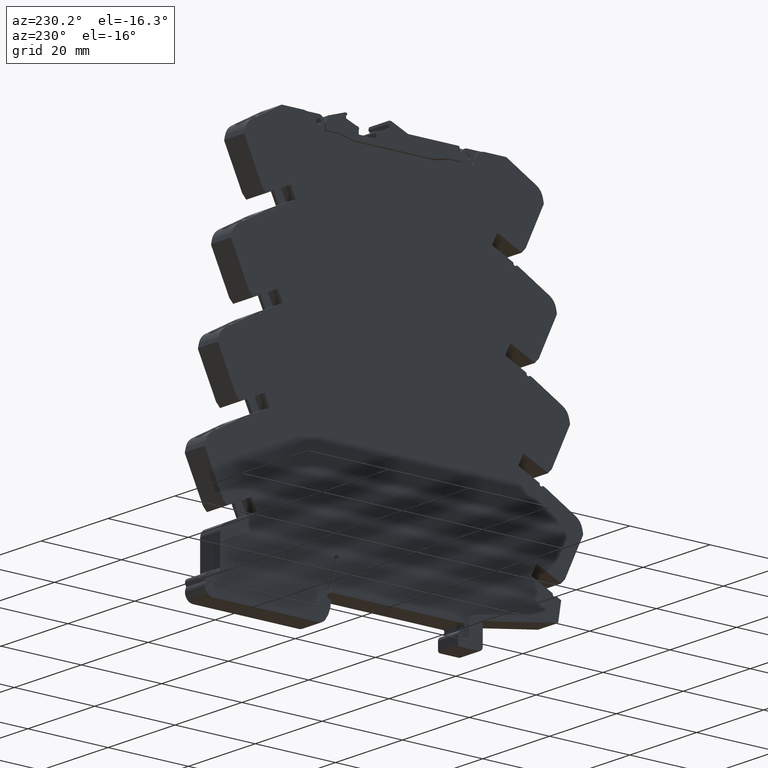
[diagram: clean part render]
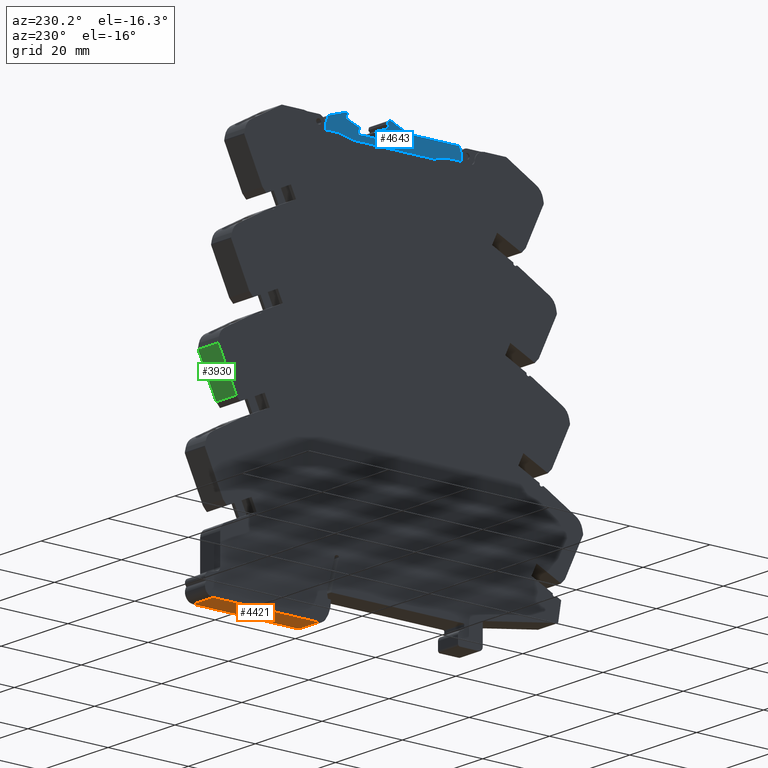
[diagram: same view with three faces highlighted in distinct colors, each labeled with its STEP entity id]
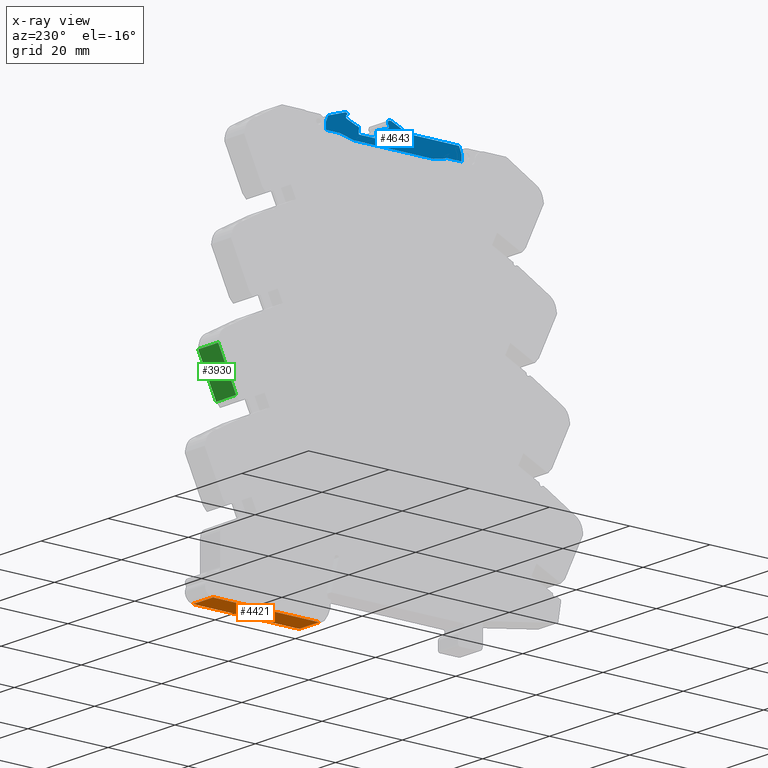
[diagram: x-ray of the same camera — body ghosted, the three highlighted faces saturated]
A machine part, auxiliary view with three faces highlighted in distinct colors.
The next image is the same camera in x-ray (body ghosted, the three faces saturated) — at least one of them is partly hidden behind the body in this view.
Their STEP definitions:

[orange] entity #4421 — the highlighted planar face has unit normal (0, 0, 1).
#105 = VERTEX_POINT ( 'NONE', #5752 ) ;
#154 = CARTESIAN_POINT ( 'NONE',  ( 0.000000000000000000, 0.7522805630401850907, -0.2558858267716535573 ) ) ;
#468 = EDGE_CURVE ( 'NONE', #105, #9638, #5641, .T. ) ;
#706 = EDGE_CURVE ( 'NONE', #10102, #2405, #8114, .T. ) ;
#1465 = CARTESIAN_POINT ( 'NONE',  ( -0.2362204724409449064, 0.7522805630611417715, -0.2558858267716535573 ) ) ;
#1492 = CARTESIAN_POINT ( 'NONE',  ( -0.2362204724409449064, 0.7522805630401850907, -0.2558858267716535573 ) ) ;
#1563 = CARTESIAN_POINT ( 'NONE',  ( -0.2362204724409449064, 1.791614549159480374, -0.2558858267716535573 ) ) ;
#1677 = VECTOR ( 'NONE', #4746, 39.37007874015748143 ) ;
#1956 = PLANE ( 'NONE',  #9848 ) ;
#2154 = LINE ( 'NONE', #9304, #6372 ) ;
#2228 = ORIENTED_EDGE ( 'NONE', *, *, #4947, .F. ) ;
#2405 = VERTEX_POINT ( 'NONE', #154 ) ;
#3201 = EDGE_LOOP ( 'NONE', ( #9626, #2228, #9007, #6309 ) ) ;
#3909 = DIRECTION ( 'NONE',  ( 1.000000000000000000, 0.000000000000000000, 0.000000000000000000 ) ) ;
#4421 = ADVANCED_FACE ( 'NONE', ( #8858 ), #1956, .F. ) ;
#4746 = DIRECTION ( 'NONE',  ( -1.000000000000000000, 0.000000000000000000, 0.000000000000000000 ) ) ;
#4947 = EDGE_CURVE ( 'NONE', #9638, #10102, #5327, .T. ) ;
#5133 = VECTOR ( 'NONE', #6605, 39.37007874015748143 ) ;
#5141 = CARTESIAN_POINT ( 'NONE',  ( -0.2362204724409449064, 1.791614549159480374, -0.2558858267716535573 ) ) ;
#5327 = LINE ( 'NONE', #9335, #5133 ) ;
#5435 = CARTESIAN_POINT ( 'NONE',  ( -0.2362204724409449064, 1.791614549159220582, -0.2558858267716535573 ) ) ;
#5636 = DIRECTION ( 'NONE',  ( 0.000000000000000000, 0.000000000000000000, 1.000000000000000000 ) ) ;
#5641 = LINE ( 'NONE', #1563, #1677 ) ;
#5752 = CARTESIAN_POINT ( 'NONE',  ( 0.000000000000000000, 1.791614549159220582, -0.2558858267716535573 ) ) ;
#5754 = VECTOR ( 'NONE', #3909, 39.37007874015748143 ) ;
#6220 = EDGE_CURVE ( 'NONE', #105, #2405, #2154, .T. ) ;
#6309 = ORIENTED_EDGE ( 'NONE', *, *, #6220, .T. ) ;
#6372 = VECTOR ( 'NONE', #8565, 39.37007874015748143 ) ;
#6605 = DIRECTION ( 'NONE',  ( 0.000000000000000000, -1.000000000000000000, 0.000000000000000000 ) ) ;
#8114 = LINE ( 'NONE', #1465, #5754 ) ;
#8565 = DIRECTION ( 'NONE',  ( 0.000000000000000000, -1.000000000000000000, 0.000000000000000000 ) ) ;
#8858 = FACE_OUTER_BOUND ( 'NONE', #3201, .T. ) ;
#9007 = ORIENTED_EDGE ( 'NONE', *, *, #468, .F. ) ;
#9304 = CARTESIAN_POINT ( 'NONE',  ( 0.000000000000000000, 1.791614549159480374, -0.2558858267716535573 ) ) ;
#9335 = CARTESIAN_POINT ( 'NONE',  ( -0.2362204724409449064, 1.855790060789259899, -0.2558858267716535573 ) ) ;
#9626 = ORIENTED_EDGE ( 'NONE', *, *, #706, .F. ) ;
#9638 = VERTEX_POINT ( 'NONE', #5435 ) ;
#9848 = AXIS2_PLACEMENT_3D ( 'NONE', #5141, #5636, #9953 ) ;
#9953 = DIRECTION ( 'NONE',  ( -1.000000000000000000, 0.000000000000000000, 0.000000000000000000 ) ) ;
#10102 = VERTEX_POINT ( 'NONE', #1492 ) ;

[blue] entity #4643 — the highlighted planar face has unit normal (-1, 0, 0).
#2 = VECTOR ( 'NONE', #3940, 39.37007874015748854 ) ;
#22 = DIRECTION ( 'NONE',  ( -0.000000000000000000, 1.000000000000000000, 2.694891775568940071E-13 ) ) ;
#35 = DIRECTION ( 'NONE',  ( 0.000000000000000000, 0.3713906763541032774, 0.9284766908852594147 ) ) ;
#72 = CARTESIAN_POINT ( 'NONE',  ( -0.2322834645669291376, 0.4057086614173228689, 3.592933070866141776 ) ) ;
#148 = DIRECTION ( 'NONE',  ( 0.000000000000000000, 1.000000000000000000, 0.000000000000000000 ) ) ;
#192 = VECTOR ( 'NONE', #4260, 39.37007874015748854 ) ;
#250 = CARTESIAN_POINT ( 'NONE',  ( -0.2322834645669291376, 0.5477952755905511895, 3.624429133858268148 ) ) ;
#281 = CIRCLE ( 'NONE', #6636, 0.007874015748031142070 ) ;
#292 = LINE ( 'NONE', #5947, #192 ) ;
#365 = DIRECTION ( 'NONE',  ( 0.000000000000000000, 0.000000000000000000, 1.000000000000000000 ) ) ;
#387 = DIRECTION ( 'NONE',  ( 0.000000000000000000, -1.000000000000000000, 0.000000000000000000 ) ) ;
#410 = EDGE_CURVE ( 'NONE', #2985, #9839, #8653, .T. ) ;
#469 = CARTESIAN_POINT ( 'NONE',  ( -0.2322834645669291376, 0.06748031494124212548, 3.777736220467449169 ) ) ;
#471 = EDGE_CURVE ( 'NONE', #6669, #2985, #772, .T. ) ;
#489 = EDGE_CURVE ( 'NONE', #5129, #4576, #1034, .T. ) ;
#507 = VECTOR ( 'NONE', #35, 39.37007874015748854 ) ;
#668 = AXIS2_PLACEMENT_3D ( 'NONE', #5158, #9966, #2748 ) ;
#717 = DIRECTION ( 'NONE',  ( 0.000000000000000000, 1.000000000000000000, 0.000000000000000000 ) ) ;
#772 = LINE ( 'NONE', #4006, #10242 ) ;
#789 = CARTESIAN_POINT ( 'NONE',  ( -0.2322834645669291376, 0.4777827464522969025, 3.749936135918433333 ) ) ;
#829 = CARTESIAN_POINT ( 'NONE',  ( -0.2322834645669291376, 0.4828346456692913513, 3.770112235944212298 ) ) ;
#994 = CARTESIAN_POINT ( 'NONE',  ( -0.2322834645669291376, 0.4830521070764567382, 3.797657480314960754 ) ) ;
#1019 = CARTESIAN_POINT ( 'NONE',  ( -0.2322834645669291376, 0.4749612217732401831, 3.757287266612803212 ) ) ;
#1023 = AXIS2_PLACEMENT_3D ( 'NONE', #7388, #9869, #4063 ) ;
#1034 = LINE ( 'NONE', #7534, #5021 ) ;
#1065 = ORIENTED_EDGE ( 'NONE', *, *, #7470, .T. ) ;
#1073 = DIRECTION ( 'NONE',  ( 1.000000000000000000, 0.000000000000000000, 0.000000000000000000 ) ) ;
#1152 = ORIENTED_EDGE ( 'NONE', *, *, #3089, .T. ) ;
#1249 = VERTEX_POINT ( 'NONE', #3324 ) ;
#1259 = CARTESIAN_POINT ( 'NONE',  ( -0.2322834645669291376, -0.3731496062992126217, 3.592933070866141776 ) ) ;
#1293 = CARTESIAN_POINT ( 'NONE',  ( -0.2322834645669291376, 0.1855905511811023756, 3.651988188976377891 ) ) ;
#1306 = CARTESIAN_POINT ( 'NONE',  ( -0.2322834645669291376, -0.7711023622047243897, 3.742539370078740379 ) ) ;
#1354 = VECTOR ( 'NONE', #4174, 39.37007874015748143 ) ;
#1417 = DIRECTION ( 'NONE',  ( -0.000000000000000000, 1.000000000000000000, -0.000000000000000000 ) ) ;
#1446 = AXIS2_PLACEMENT_3D ( 'NONE', #9711, #3279, #9015 ) ;
#1470 = CARTESIAN_POINT ( 'NONE',  ( -0.2322834645669291376, 0.3730117891513389794, 3.711830708661417511 ) ) ;
#1490 = AXIS2_PLACEMENT_3D ( 'NONE', #2511, #9666, #4118 ) ;
#1541 = CARTESIAN_POINT ( 'NONE',  ( -0.2322834645669291376, 0.06662670557083111289, 3.749936134688583333 ) ) ;
#1546 = CARTESIAN_POINT ( 'NONE',  ( -0.2322834645669291376, 0.04385826771653543454, 3.813405511811023718 ) ) ;
#1765 = DIRECTION ( 'NONE',  ( 0.000000000000000000, 0.9190175411928306337, 0.3942166396537363227 ) ) ;
#1796 = ORIENTED_EDGE ( 'NONE', *, *, #10096, .T. ) ;
#1797 = ORIENTED_EDGE ( 'NONE', *, *, #8513, .T. ) ;
#1832 = EDGE_CURVE ( 'NONE', #1916, #4015, #8430, .T. ) ;
#1916 = VERTEX_POINT ( 'NONE', #6354 ) ;
#1940 = VERTEX_POINT ( 'NONE', #4674 ) ;
#1973 = DIRECTION ( 'NONE',  ( 1.000000000000000000, 0.000000000000000000, 0.000000000000000000 ) ) ;
#1982 = CARTESIAN_POINT ( 'NONE',  ( -0.2322834645669291376, 0.1713976514464811141, 3.694074803149606456 ) ) ;
#2004 = CARTESIAN_POINT ( 'NONE',  ( -0.2322834645669291376, 0.03610236220472440999, 3.811830708661417599 ) ) ;
#2018 = VECTOR ( 'NONE', #387, 39.37007874015748143 ) ;
#2035 = AXIS2_PLACEMENT_3D ( 'NONE', #1982, #3637, #3537 ) ;
#2087 = LINE ( 'NONE', #10026, #4363 ) ;
#2099 = CARTESIAN_POINT ( 'NONE',  ( -0.2322834645669291376, 0.4711811023622047290, 3.786988188976378122 ) ) ;
#2183 = CIRCLE ( 'NONE', #7029, 0.01968503937007141588 ) ;
#2193 = CIRCLE ( 'NONE', #4170, 0.007874015748031142070 ) ;
#2246 = VERTEX_POINT ( 'NONE', #789 ) ;
#2259 = ORIENTED_EDGE ( 'NONE', *, *, #1832, .T. ) ;
#2304 = LINE ( 'NONE', #1470, #2325 ) ;
#2312 = LINE ( 'NONE', #1541, #5131 ) ;
#2325 = VECTOR ( 'NONE', #1417, 39.37007874015748143 ) ;
#2333 = ORIENTED_EDGE ( 'NONE', *, *, #2623, .F. ) ;
#2336 = LINE ( 'NONE', #6379, #8159 ) ;
#2363 = CARTESIAN_POINT ( 'NONE',  ( -0.2322834645669291376, 0.05805025307207165725, 3.813405511811023718 ) ) ;
#2365 = AXIS2_PLACEMENT_3D ( 'NONE', #9851, #1073, #2794 ) ;
#2380 = DIRECTION ( 'NONE',  ( 0.000000000000000000, -0.9763014966003554784, -0.2164148510058999109 ) ) ;
#2383 = EDGE_LOOP ( 'NONE', ( #3216, #1796, #1797, #9180, #2259, #6268, #5552, #1065, #2735, #8272, #2425, #8455, #6945, #10405, #1152, #5804, #4278, #2333, #3727, #4481, #7187, #8621, #2939, #7101, #6941, #2898, #9747, #5853, #4575, #8615, #4334, #6258, #6519, #9890, #4936, #2509, #4662, #4349, #3464, #10267, #9275, #4941 ) ) ;
#2394 = CARTESIAN_POINT ( 'NONE',  ( -0.2322834645669291376, -0.1254330708661417493, 3.742539370078740379 ) ) ;
#2395 = DIRECTION ( 'NONE',  ( 1.000000000000000000, 0.000000000000000000, 0.000000000000000000 ) ) ;
#2404 = LINE ( 'NONE', #5596, #9338 ) ;
#2425 = ORIENTED_EDGE ( 'NONE', *, *, #8564, .T. ) ;
#2443 = DIRECTION ( 'NONE',  ( 0.000000000000000000, -1.000000000000000000, 0.000000000000000000 ) ) ;
#2444 = VECTOR ( 'NONE', #6920, 39.37007874015748143 ) ;
#2456 = EDGE_CURVE ( 'NONE', #8308, #4756, #5708, .T. ) ;
#2509 = ORIENTED_EDGE ( 'NONE', *, *, #2908, .T. ) ;
#2511 = CARTESIAN_POINT ( 'NONE',  ( -0.2322834645669291376, 0.05805025036411063516, 3.801594488188976051 ) ) ;
#2514 = VECTOR ( 'NONE', #10000, 39.37007874015748143 ) ;
#2531 = VECTOR ( 'NONE', #22, 39.37007874015748143 ) ;
#2542 = DIRECTION ( 'NONE',  ( 1.000000000000000000, 0.000000000000000000, 0.000000000000000000 ) ) ;
#2553 = VERTEX_POINT ( 'NONE', #9875 ) ;
#2574 = EDGE_CURVE ( 'NONE', #8877, #3992, #7802, .T. ) ;
#2623 = EDGE_CURVE ( 'NONE', #7725, #5243, #2193, .T. ) ;
#2657 = EDGE_CURVE ( 'NONE', #2688, #4904, #10336, .T. ) ;
#2687 = CARTESIAN_POINT ( 'NONE',  ( -0.2322834645669291376, 0.06960337406747618694, 3.804049200329976621 ) ) ;
#2688 = VERTEX_POINT ( 'NONE', #5682 ) ;
#2703 = DIRECTION ( 'NONE',  ( 0.000000000000000000, 1.000000000000000000, 0.000000000000000000 ) ) ;
#2735 = ORIENTED_EDGE ( 'NONE', *, *, #471, .T. ) ;
#2748 = DIRECTION ( 'NONE',  ( 0.000000000000000000, 1.000000000000000000, 0.000000000000000000 ) ) ;
#2765 = CARTESIAN_POINT ( 'NONE',  ( -0.2322834645669291376, 0.3548818897637794900, 3.648051181102362595 ) ) ;
#2786 = EDGE_CURVE ( 'NONE', #6122, #4924, #6031, .T. ) ;
#2794 = DIRECTION ( 'NONE',  ( 0.000000000000000000, 1.000000000000000000, 0.000000000000000000 ) ) ;
#2801 = CARTESIAN_POINT ( 'NONE',  ( -0.2322834645669291376, -0.6490551181102363065, 3.683484251968504264 ) ) ;
#2836 = CIRCLE ( 'NONE', #4157, 0.01775590551181102303 ) ;
#2857 = VERTEX_POINT ( 'NONE', #5053 ) ;
#2890 = LINE ( 'NONE', #7574, #3784 ) ;
#2898 = ORIENTED_EDGE ( 'NONE', *, *, #9417, .F. ) ;
#2908 = EDGE_CURVE ( 'NONE', #1249, #8877, #4704, .T. ) ;
#2938 = DIRECTION ( 'NONE',  ( -0.000000000000000000, 1.000000000000000000, -0.000000000000000000 ) ) ;
#2939 = ORIENTED_EDGE ( 'NONE', *, *, #4645, .T. ) ;
#2985 = VERTEX_POINT ( 'NONE', #10063 ) ;
#3054 = LINE ( 'NONE', #1546, #2531 ) ;
#3089 = EDGE_CURVE ( 'NONE', #2857, #7448, #3054, .T. ) ;
#3149 = CARTESIAN_POINT ( 'NONE',  ( -0.2322834645669291376, 0.5477952755905511895, 3.624429133858268148 ) ) ;
#3154 = AXIS2_PLACEMENT_3D ( 'NONE', #5020, #4021, #148 ) ;
#3161 = EDGE_CURVE ( 'NONE', #4015, #5575, #7201, .T. ) ;
#3168 = LINE ( 'NONE', #5635, #8215 ) ;
#3171 = CARTESIAN_POINT ( 'NONE',  ( -0.2322834645669291376, 0.04381739015909803109, 3.793720514883752504 ) ) ;
#3194 = AXIS2_PLACEMENT_3D ( 'NONE', #5633, #9062, #3415 ) ;
#3196 = VERTEX_POINT ( 'NONE', #8305 ) ;
#3215 = CARTESIAN_POINT ( 'NONE',  ( -0.2322834645669291376, 0.06552380445308779444, 3.785363290069200914 ) ) ;
#3216 = ORIENTED_EDGE ( 'NONE', *, *, #9945, .F. ) ;
#3279 = DIRECTION ( 'NONE',  ( 1.000000000000000000, 0.000000000000000000, 0.000000000000000000 ) ) ;
#3324 = CARTESIAN_POINT ( 'NONE',  ( -0.2322834645669291376, 0.4827165354330196778, 3.755925196850027792 ) ) ;
#3327 = CIRCLE ( 'NONE', #4703, 0.01181102362204765159 ) ;
#3367 = DIRECTION ( 'NONE',  ( 0.000000000000000000, 1.000000000000000000, 0.000000000000000000 ) ) ;
#3415 = DIRECTION ( 'NONE',  ( 0.000000000000000000, 1.000000000000000000, 0.000000000000000000 ) ) ;
#3464 = ORIENTED_EDGE ( 'NONE', *, *, #7561, .F. ) ;
#3537 = DIRECTION ( 'NONE',  ( 0.000000000000000000, 1.000000000000000000, 0.000000000000000000 ) ) ;
#3637 = DIRECTION ( 'NONE',  ( 1.000000000000000000, 0.000000000000000000, 0.000000000000000000 ) ) ;
#3668 = CIRCLE ( 'NONE', #4007, 0.01775590551181102303 ) ;
#3727 = ORIENTED_EDGE ( 'NONE', *, *, #5540, .F. ) ;
#3773 = EDGE_CURVE ( 'NONE', #5575, #7252, #5234, .T. ) ;
#3784 = VECTOR ( 'NONE', #2938, 39.37007874015748143 ) ;
#3810 = CIRCLE ( 'NONE', #3154, 0.007874015748031175030 ) ;
#3817 = CARTESIAN_POINT ( 'NONE',  ( -0.2322834645669291376, 0.4869291338582677486, 3.797657480314960754 ) ) ;
#3851 = VERTEX_POINT ( 'NONE', #2765 ) ;
#3859 = EDGE_CURVE ( 'NONE', #9877, #5129, #5969, .T. ) ;
#3869 = CARTESIAN_POINT ( 'NONE',  ( -0.2322834645669291376, 0.4711811023622047290, 3.786988188976378122 ) ) ;
#3917 = CARTESIAN_POINT ( 'NONE',  ( -0.2322834645669291376, 0.3730117932618783327, 3.711830708661417511 ) ) ;
#3940 = DIRECTION ( 'NONE',  ( 0.000000000000000000, 0.9489769688854071683, -0.3153453860849481094 ) ) ;
#3992 = VERTEX_POINT ( 'NONE', #829 ) ;
#4006 = CARTESIAN_POINT ( 'NONE',  ( -0.2322834645669291376, -0.6136220472440945262, 3.624429133858268148 ) ) ;
#4007 = AXIS2_PLACEMENT_3D ( 'NONE', #8260, #4355, #8857 ) ;
#4011 = EDGE_CURVE ( 'NONE', #3992, #9032, #5958, .T. ) ;
#4013 = VECTOR ( 'NONE', #5282, 39.37007874015748854 ) ;
#4015 = VERTEX_POINT ( 'NONE', #250 ) ;
#4021 = DIRECTION ( 'NONE',  ( 1.000000000000000000, 0.000000000000000000, 0.000000000000000000 ) ) ;
#4022 = VECTOR ( 'NONE', #10087, 39.37007874015748854 ) ;
#4063 = DIRECTION ( 'NONE',  ( 0.000000000000000000, 1.000000000000000000, 0.000000000000000000 ) ) ;
#4107 = EDGE_CURVE ( 'NONE', #4776, #2246, #2404, .T. ) ;
#4118 = DIRECTION ( 'NONE',  ( 0.000000000000000000, 1.000000000000000000, 0.000000000000000000 ) ) ;
#4137 = CARTESIAN_POINT ( 'NONE',  ( -0.2322834645669291376, 0.06552380445308779444, 3.785363290069200914 ) ) ;
#4157 = AXIS2_PLACEMENT_3D ( 'NONE', #7104, #6367, #5319 ) ;
#4170 = AXIS2_PLACEMENT_3D ( 'NONE', #3215, #8010, #717 ) ;
#4174 = DIRECTION ( 'NONE',  ( -0.000000000000000000, 1.000000000000000000, 1.268324070306960019E-12 ) ) ;
#4229 = EDGE_CURVE ( 'NONE', #4904, #3196, #5268, .T. ) ;
#4241 = VERTEX_POINT ( 'NONE', #8600 ) ;
#4260 = DIRECTION ( 'NONE',  ( -0.000000000000000000, 0.2078317377634618934, -0.9781645918648964599 ) ) ;
#4278 = ORIENTED_EDGE ( 'NONE', *, *, #9837, .T. ) ;
#4334 = ORIENTED_EDGE ( 'NONE', *, *, #9830, .T. ) ;
#4342 = CIRCLE ( 'NONE', #6534, 0.007874015748030628592 ) ;
#4349 = ORIENTED_EDGE ( 'NONE', *, *, #4011, .T. ) ;
#4355 = DIRECTION ( 'NONE',  ( 1.000000000000000000, 0.000000000000000000, 0.000000000000000000 ) ) ;
#4363 = VECTOR ( 'NONE', #5270, 39.37007874015748143 ) ;
#4406 = VERTEX_POINT ( 'NONE', #2687 ) ;
#4412 = CARTESIAN_POINT ( 'NONE',  ( -0.2322834645669291376, 0.04381739015909803109, 3.624429133858268148 ) ) ;
#4426 = LINE ( 'NONE', #9126, #4022 ) ;
#4477 = DIRECTION ( 'NONE',  ( -0.000000000000000000, 0.7071067811865690000, -0.7071067811865260344 ) ) ;
#4481 = ORIENTED_EDGE ( 'NONE', *, *, #2786, .T. ) ;
#4487 = CARTESIAN_POINT ( 'NONE',  ( -0.2322834645669291376, 0.04381739015909803109, 3.592933070866141776 ) ) ;
#4555 = CARTESIAN_POINT ( 'NONE',  ( -0.2322834645669291376, 0.6816535433070866068, 3.683484251968504264 ) ) ;
#4573 = EDGE_CURVE ( 'NONE', #1940, #8898, #2890, .T. ) ;
#4575 = ORIENTED_EDGE ( 'NONE', *, *, #5151, .T. ) ;
#4576 = VERTEX_POINT ( 'NONE', #2004 ) ;
#4643 = ADVANCED_FACE ( 'NONE', ( #8733 ), #7092, .T. ) ;
#4645 = EDGE_CURVE ( 'NONE', #8006, #1940, #2312, .T. ) ;
#4662 = ORIENTED_EDGE ( 'NONE', *, *, #2574, .T. ) ;
#4674 = CARTESIAN_POINT ( 'NONE',  ( -0.2322834645669291376, 0.1659055118110236149, 3.711830708661417511 ) ) ;
#4703 = AXIS2_PLACEMENT_3D ( 'NONE', #8377, #1973, #2703 ) ;
#4704 = CIRCLE ( 'NONE', #2365, 0.007874015748010755600 ) ;
#4736 = CARTESIAN_POINT ( 'NONE',  ( -0.2322834645669291376, 0.4931496062992126173, 3.796673228346456597 ) ) ;
#4743 = DIRECTION ( 'NONE',  ( -0.000000000000000000, 1.000000000000000000, -0.000000000000000000 ) ) ;
#4756 = VERTEX_POINT ( 'NONE', #3817 ) ;
#4776 = VERTEX_POINT ( 'NONE', #9782 ) ;
#4904 = VERTEX_POINT ( 'NONE', #5956 ) ;
#4924 = VERTEX_POINT ( 'NONE', #8489 ) ;
#4936 = ORIENTED_EDGE ( 'NONE', *, *, #10149, .T. ) ;
#4941 = ORIENTED_EDGE ( 'NONE', *, *, #2456, .T. ) ;
#5020 = CARTESIAN_POINT ( 'NONE',  ( -0.2322834645669291376, 0.4788856357500354544, 3.785363292279330771 ) ) ;
#5021 = VECTOR ( 'NONE', #1765, 39.37007874015748854 ) ;
#5043 = LINE ( 'NONE', #5887, #507 ) ;
#5053 = CARTESIAN_POINT ( 'NONE',  ( -0.2322834645669291376, 0.04385826771653543454, 3.813405511811023718 ) ) ;
#5057 = CARTESIAN_POINT ( 'NONE',  ( -0.2322834645669291376, 0.07322588781502126221, 3.786999760626858613 ) ) ;
#5129 = VERTEX_POINT ( 'NONE', #2394 ) ;
#5131 = VECTOR ( 'NONE', #6191, 39.37007874015748854 ) ;
#5151 = EDGE_CURVE ( 'NONE', #3196, #3851, #2336, .T. ) ;
#5158 = CARTESIAN_POINT ( 'NONE',  ( -0.2322834645669291376, 0.4870025383501614402, 3.777972577806129717 ) ) ;
#5172 = CARTESIAN_POINT ( 'NONE',  ( -0.2322834645669291376, 0.3588188976377952866, 3.651988188976377891 ) ) ;
#5220 = CARTESIAN_POINT ( 'NONE',  ( -0.2322834645669291376, 0.06662670236660236944, 3.749936135918437330 ) ) ;
#5234 = LINE ( 'NONE', #4487, #2444 ) ;
#5243 = VERTEX_POINT ( 'NONE', #5057 ) ;
#5263 = DIRECTION ( 'NONE',  ( 0.000000000000000000, 0.000000000000000000, 1.000000000000000000 ) ) ;
#5268 = LINE ( 'NONE', #1293, #5467 ) ;
#5270 = DIRECTION ( 'NONE',  ( -0.000000000000000000, -0.000000000000000000, -1.000000000000000000 ) ) ;
#5282 = DIRECTION ( 'NONE',  ( -0.000000000000000000, 0.2356000256191908560, 0.9718501056892654422 ) ) ;
#5319 = DIRECTION ( 'NONE',  ( 0.000000000000000000, 1.000000000000000000, 0.000000000000000000 ) ) ;
#5356 = CARTESIAN_POINT ( 'NONE',  ( -0.2322834645669291376, 0.04381739015909803109, 3.793720514883752504 ) ) ;
#5355 = LINE ( 'NONE', #6982, #2514 ) ;
#5377 = LINE ( 'NONE', #4736, #2 ) ;
#5452 = CARTESIAN_POINT ( 'NONE',  ( -0.2322834645669291376, -0.3731496062992126217, 3.592933070866141776 ) ) ;
#5467 = VECTOR ( 'NONE', #4477, 39.37007874015748143 ) ;
#5483 = CARTESIAN_POINT ( 'NONE',  ( -0.2322834645669291376, 0.1855905511811023756, 3.683405511811023825 ) ) ;
#5540 = EDGE_CURVE ( 'NONE', #6122, #7725, #281, .T. ) ;
#5552 = ORIENTED_EDGE ( 'NONE', *, *, #3773, .T. ) ;
#5575 = VERTEX_POINT ( 'NONE', #72 ) ;
#5596 = CARTESIAN_POINT ( 'NONE',  ( -0.2322834645669291376, 0.3785039370078739918, 3.711830708661417511 ) ) ;
#5613 = VERTEX_POINT ( 'NONE', #9640 ) ;
#5633 = CARTESIAN_POINT ( 'NONE',  ( -0.2322834645669291376, 0.06944880678858543488, 3.770112234380944560 ) ) ;
#5635 = CARTESIAN_POINT ( 'NONE',  ( -0.2322834645669291376, 0.6583070866141732536, 3.741791338582677096 ) ) ;
#5682 = CARTESIAN_POINT ( 'NONE',  ( -0.2322834645669291376, 0.1855905511811023756, 3.683405511811023825 ) ) ;
#5708 = LINE ( 'NONE', #994, #1354 ) ;
#5777 = DIRECTION ( 'NONE',  ( 0.000000000000000000, 1.000000000000000000, 0.000000000000000000 ) ) ;
#5804 = ORIENTED_EDGE ( 'NONE', *, *, #7536, .F. ) ;
#5853 = ORIENTED_EDGE ( 'NONE', *, *, #4229, .T. ) ;
#5887 = CARTESIAN_POINT ( 'NONE',  ( -0.2322834645669291376, -0.6490551181102363065, 3.683484251968504264 ) ) ;
#5947 = CARTESIAN_POINT ( 'NONE',  ( -0.2322834645669291376, 0.06960337267008268047, 3.804049206906838343 ) ) ;
#5956 = CARTESIAN_POINT ( 'NONE',  ( -0.2322834645669291376, 0.1855905511811023756, 3.651988188976377891 ) ) ;
#5958 = CIRCLE ( 'NONE', #1446, 0.007874015748032267906 ) ;
#5969 = LINE ( 'NONE', #1306, #8826 ) ;
#6031 = CIRCLE ( 'NONE', #3194, 0.007874015748031662487 ) ;
#6103 = LINE ( 'NONE', #10126, #8554 ) ;
#6121 = DIRECTION ( 'NONE',  ( -0.000000000000000000, 1.000000000000000000, -0.000000000000000000 ) ) ;
#6122 = VERTEX_POINT ( 'NONE', #469 ) ;
#6170 = VERTEX_POINT ( 'NONE', #3917 ) ;
#6179 = EDGE_CURVE ( 'NONE', #6170, #4776, #2304, .T. ) ;
#6191 = DIRECTION ( 'NONE',  ( 0.000000000000000000, 0.9335934419935474349, -0.3583340411775592926 ) ) ;
#6203 = VECTOR ( 'NONE', #8065, 39.37007874015748143 ) ;
#6246 = DIRECTION ( 'NONE',  ( -1.000000000000000000, 0.000000000000000000, 0.000000000000000000 ) ) ;
#6258 = ORIENTED_EDGE ( 'NONE', *, *, #10045, .F. ) ;
#6268 = ORIENTED_EDGE ( 'NONE', *, *, #3161, .T. ) ;
#6354 = CARTESIAN_POINT ( 'NONE',  ( -0.2322834645669291376, 0.6816535433070866068, 3.624429133858268148 ) ) ;
#6367 = DIRECTION ( 'NONE',  ( 1.000000000000000000, 0.000000000000000000, 0.000000000000000000 ) ) ;
#6379 = CARTESIAN_POINT ( 'NONE',  ( -0.2322834645669291376, 0.04381739015909803109, 3.648051181102362595 ) ) ;
#6519 = ORIENTED_EDGE ( 'NONE', *, *, #6179, .T. ) ;
#6534 = AXIS2_PLACEMENT_3D ( 'NONE', #1019, #2542, #3367 ) ;
#6560 = CARTESIAN_POINT ( 'NONE',  ( -0.2322834645669291376, 0.1891535569582921406, 3.694074803149606456 ) ) ;
#6636 = AXIS2_PLACEMENT_3D ( 'NONE', #4137, #8992, #5777 ) ;
#6655 = CARTESIAN_POINT ( 'NONE',  ( -0.2322834645669291376, 0.1713976555570204674, 3.711830708661417511 ) ) ;
#6669 = VERTEX_POINT ( 'NONE', #8654 ) ;
#6692 = VECTOR ( 'NONE', #9654, 39.37007874015748143 ) ;
#6920 = DIRECTION ( 'NONE',  ( 0.000000000000000000, -1.000000000000000000, 0.000000000000000000 ) ) ;
#6941 = ORIENTED_EDGE ( 'NONE', *, *, #8573, .F. ) ;
#6945 = ORIENTED_EDGE ( 'NONE', *, *, #489, .T. ) ;
#6982 = CARTESIAN_POINT ( 'NONE',  ( -0.2322834645669291376, 0.3548818897637794900, 3.648051181102362595 ) ) ;
#6984 = AXIS2_PLACEMENT_3D ( 'NONE', #5356, #6246, #7733 ) ;
#7029 = AXIS2_PLACEMENT_3D ( 'NONE', #3171, #2395, #9856 ) ;
#7056 = CARTESIAN_POINT ( 'NONE',  ( -0.2322834645669291376, 0.4931496062992126173, 3.796673228346456597 ) ) ;
#7092 = PLANE ( 'NONE',  #6984 ) ;
#7101 = ORIENTED_EDGE ( 'NONE', *, *, #4573, .T. ) ;
#7104 = CARTESIAN_POINT ( 'NONE',  ( -0.2322834645669291376, 0.3730117973724177416, 3.694074803149606456 ) ) ;
#7187 = ORIENTED_EDGE ( 'NONE', *, *, #9484, .T. ) ;
#7201 = LINE ( 'NONE', #3149, #8755 ) ;
#7222 = CIRCLE ( 'NONE', #2035, 0.01775590551181102303 ) ;
#7252 = VERTEX_POINT ( 'NONE', #1259 ) ;
#7388 = CARTESIAN_POINT ( 'NONE',  ( -0.2322834645669291376, 0.06944822704565827010, 3.757287266612799215 ) ) ;
#7393 = CIRCLE ( 'NONE', #668, 0.01968503937008551918 ) ;
#7448 = VERTEX_POINT ( 'NONE', #2363 ) ;
#7470 = EDGE_CURVE ( 'NONE', #7252, #6669, #7774, .T. ) ;
#7474 = VERTEX_POINT ( 'NONE', #3869 ) ;
#7476 = VERTEX_POINT ( 'NONE', #4555 ) ;
#7531 = CARTESIAN_POINT ( 'NONE',  ( -0.2322834645669291376, -0.6254330708661417493, 3.742539370078740379 ) ) ;
#7534 = CARTESIAN_POINT ( 'NONE',  ( -0.2322834645669291376, -0.1254330708661417493, 3.742539370078740379 ) ) ;
#7536 = EDGE_CURVE ( 'NONE', #4406, #7448, #10398, .T. ) ;
#7555 = CARTESIAN_POINT ( 'NONE',  ( -0.2322834645669291376, 0.4828346456692913513, 3.757284025005905637 ) ) ;
#7561 = EDGE_CURVE ( 'NONE', #7474, #9032, #3810, .T. ) ;
#7572 = DIRECTION ( 'NONE',  ( -0.000000000000000000, 0.3717148802147739461, -0.9283469436729547830 ) ) ;
#7574 = CARTESIAN_POINT ( 'NONE',  ( -0.2322834645669291376, 0.1659055118110236149, 3.711830708661417511 ) ) ;
#7693 = VERTEX_POINT ( 'NONE', #5172 ) ;
#7712 = VECTOR ( 'NONE', #8668, 39.37007874015748854 ) ;
#7725 = VERTEX_POINT ( 'NONE', #8450 ) ;
#7733 = DIRECTION ( 'NONE',  ( 0.000000000000000000, -1.000000000000000000, 0.000000000000000000 ) ) ;
#7774 = LINE ( 'NONE', #5452, #7712 ) ;
#7802 = LINE ( 'NONE', #7555, #9753 ) ;
#7860 = CARTESIAN_POINT ( 'NONE',  ( -0.2322834645669291376, -0.6490551181102363065, 3.624429133858268148 ) ) ;
#8006 = VERTEX_POINT ( 'NONE', #5220 ) ;
#8010 = DIRECTION ( 'NONE',  ( 1.000000000000000000, 0.000000000000000000, 0.000000000000000000 ) ) ;
#8065 = DIRECTION ( 'NONE',  ( -0.000000000000000000, -0.000000000000000000, -1.000000000000000000 ) ) ;
#8141 = CARTESIAN_POINT ( 'NONE',  ( -0.2322834645669291376, 0.4828346456698504596, 3.757283892441476425 ) ) ;
#8159 = VECTOR ( 'NONE', #4743, 39.37007874015748143 ) ;
#8215 = VECTOR ( 'NONE', #7572, 39.37007874015748143 ) ;
#8260 = CARTESIAN_POINT ( 'NONE',  ( -0.2322834645669291376, 0.1713976514464811141, 3.694074803149606456 ) ) ;
#8272 = ORIENTED_EDGE ( 'NONE', *, *, #410, .T. ) ;
#8305 = CARTESIAN_POINT ( 'NONE',  ( -0.2322834645669291376, 0.1895275590551181166, 3.648051181102362595 ) ) ;
#8308 = VERTEX_POINT ( 'NONE', #8311 ) ;
#8311 = CARTESIAN_POINT ( 'NONE',  ( -0.2322834645669291376, 0.4830521051771244356, 3.797657480314960754 ) ) ;
#8377 = CARTESIAN_POINT ( 'NONE',  ( -0.2322834645669291376, 0.4830521032778070656, 3.785846456692913531 ) ) ;
#8430 = LINE ( 'NONE', #4412, #2018 ) ;
#8450 = CARTESIAN_POINT ( 'NONE',  ( -0.2322834645669291376, 0.07339782020111894345, 3.785363290069200914 ) ) ;
#8455 = ORIENTED_EDGE ( 'NONE', *, *, #3859, .T. ) ;
#8489 = CARTESIAN_POINT ( 'NONE',  ( -0.2322834645669291376, 0.06157480314960452755, 3.770098425196850567 ) ) ;
#8513 = EDGE_CURVE ( 'NONE', #8580, #7476, #3168, .T. ) ;
#8554 = VECTOR ( 'NONE', #5263, 39.37007874015748143 ) ;
#8564 = EDGE_CURVE ( 'NONE', #9839, #9877, #5043, .T. ) ;
#8573 = EDGE_CURVE ( 'NONE', #8871, #8898, #3668, .T. ) ;
#8580 = VERTEX_POINT ( 'NONE', #9103 ) ;
#8600 = CARTESIAN_POINT ( 'NONE',  ( -0.2322834645669291376, 0.3588188976377952866, 3.683405511811023825 ) ) ;
#8615 = ORIENTED_EDGE ( 'NONE', *, *, #8704, .T. ) ;
#8621 = ORIENTED_EDGE ( 'NONE', *, *, #9285, .T. ) ;
#8653 = LINE ( 'NONE', #7860, #6692 ) ;
#8654 = CARTESIAN_POINT ( 'NONE',  ( -0.2322834645669291376, -0.5151968503937007782, 3.624429133858268148 ) ) ;
#8668 = DIRECTION ( 'NONE',  ( 0.000000000000000000, -0.9762888217374822153, 0.2164720225582015545 ) ) ;
#8704 = EDGE_CURVE ( 'NONE', #3851, #7693, #5355, .T. ) ;
#8733 = FACE_OUTER_BOUND ( 'NONE', #2383, .T. ) ;
#8755 = VECTOR ( 'NONE', #2380, 39.37007874015748143 ) ;
#8815 = DIRECTION ( 'NONE',  ( 0.000000000000000000, 0.9335934419935616457, 0.3583340411775223777 ) ) ;
#8826 = VECTOR ( 'NONE', #6121, 39.37007874015748143 ) ;
#8857 = DIRECTION ( 'NONE',  ( 0.000000000000000000, 1.000000000000000000, 0.000000000000000000 ) ) ;
#8871 = VERTEX_POINT ( 'NONE', #6560 ) ;
#8877 = VERTEX_POINT ( 'NONE', #8141 ) ;
#8898 = VERTEX_POINT ( 'NONE', #6655 ) ;
#8992 = DIRECTION ( 'NONE',  ( 1.000000000000000000, 0.000000000000000000, 0.000000000000000000 ) ) ;
#9015 = DIRECTION ( 'NONE',  ( 0.000000000000000000, 1.000000000000000000, 0.000000000000000000 ) ) ;
#9032 = VERTEX_POINT ( 'NONE', #9988 ) ;
#9062 = DIRECTION ( 'NONE',  ( 1.000000000000000000, 0.000000000000000000, 0.000000000000000000 ) ) ;
#9103 = CARTESIAN_POINT ( 'NONE',  ( -0.2322834645669291376, 0.6583070866141732536, 3.741791338582677096 ) ) ;
#9126 = CARTESIAN_POINT ( 'NONE',  ( -0.2322834645669291376, 0.06157480314960473572, 3.770098425196850567 ) ) ;
#9140 = EDGE_CURVE ( 'NONE', #7474, #2553, #9299, .T. ) ;
#9180 = ORIENTED_EDGE ( 'NONE', *, *, #9502, .T. ) ;
#9275 = ORIENTED_EDGE ( 'NONE', *, *, #9942, .F. ) ;
#9285 = EDGE_CURVE ( 'NONE', #5613, #8006, #9421, .T. ) ;
#9299 = LINE ( 'NONE', #2099, #4013 ) ;
#9338 = VECTOR ( 'NONE', #8815, 39.37007874015747433 ) ;
#9417 = EDGE_CURVE ( 'NONE', #2688, #8871, #7222, .T. ) ;
#9421 = CIRCLE ( 'NONE', #1023, 0.007874015748028000486 ) ;
#9484 = EDGE_CURVE ( 'NONE', #4924, #5613, #4426, .T. ) ;
#9502 = EDGE_CURVE ( 'NONE', #7476, #1916, #2087, .T. ) ;
#9640 = CARTESIAN_POINT ( 'NONE',  ( -0.2322834645669291376, 0.06169291338582677531, 3.755925196850331105 ) ) ;
#9654 = DIRECTION ( 'NONE',  ( 0.000000000000000000, 0.000000000000000000, 1.000000000000000000 ) ) ;
#9666 = DIRECTION ( 'NONE',  ( 1.000000000000000000, 0.000000000000000000, 0.000000000000000000 ) ) ;
#9693 = EDGE_CURVE ( 'NONE', #2857, #4576, #2183, .T. ) ;
#9711 = CARTESIAN_POINT ( 'NONE',  ( -0.2322834645669291376, 0.4749606299212598692, 3.770112237507480923 ) ) ;
#9747 = ORIENTED_EDGE ( 'NONE', *, *, #2657, .T. ) ;
#9753 = VECTOR ( 'NONE', #365, 39.37007874015748143 ) ;
#9782 = CARTESIAN_POINT ( 'NONE',  ( -0.2322834645669291376, 0.3785039370078739918, 3.711830708661417511 ) ) ;
#9830 = EDGE_CURVE ( 'NONE', #7693, #4241, #6103, .T. ) ;
#9837 = EDGE_CURVE ( 'NONE', #4406, #5243, #292, .T. ) ;
#9839 = VERTEX_POINT ( 'NONE', #2801 ) ;
#9851 = CARTESIAN_POINT ( 'NONE',  ( -0.2322834645669291376, 0.4749606299223976813, 3.757283892441476425 ) ) ;
#9856 = DIRECTION ( 'NONE',  ( 0.000000000000000000, 1.000000000000000000, 0.000000000000000000 ) ) ;
#9869 = DIRECTION ( 'NONE',  ( 1.000000000000000000, 0.000000000000000000, 0.000000000000000000 ) ) ;
#9875 = CARTESIAN_POINT ( 'NONE',  ( -0.2322834645669291376, 0.4714960629921780000, 3.788287401575015867 ) ) ;
#9877 = VERTEX_POINT ( 'NONE', #7531 ) ;
#9890 = ORIENTED_EDGE ( 'NONE', *, *, #4107, .T. ) ;
#9942 = EDGE_CURVE ( 'NONE', #8308, #2553, #3327, .T. ) ;
#9945 = EDGE_CURVE ( 'NONE', #10041, #4756, #7393, .T. ) ;
#9966 = DIRECTION ( 'NONE',  ( 1.000000000000000000, 0.000000000000000000, 0.000000000000000000 ) ) ;
#9988 = CARTESIAN_POINT ( 'NONE',  ( -0.2322834645669291376, 0.4769291338778268163, 3.777736220467405648 ) ) ;
#10000 = DIRECTION ( 'NONE',  ( -0.000000000000000000, 0.7071067811864679697, 0.7071067811866270647 ) ) ;
#10026 = CARTESIAN_POINT ( 'NONE',  ( -0.2322834645669291376, 0.6816535433070866068, 3.683484251968504264 ) ) ;
#10041 = VERTEX_POINT ( 'NONE', #7056 ) ;
#10045 = EDGE_CURVE ( 'NONE', #6170, #4241, #2836, .T. ) ;
#10063 = CARTESIAN_POINT ( 'NONE',  ( -0.2322834645669291376, -0.6490551181102363065, 3.624429133858268148 ) ) ;
#10087 = DIRECTION ( 'NONE',  ( -0.000000000000000000, 0.008333043996669340855, -0.9999652795861211363 ) ) ;
#10096 = EDGE_CURVE ( 'NONE', #10041, #8580, #5377, .T. ) ;
#10126 = CARTESIAN_POINT ( 'NONE',  ( -0.2322834645669291376, 0.3588188976377952866, 3.651988188976377891 ) ) ;
#10149 = EDGE_CURVE ( 'NONE', #2246, #1249, #4342, .T. ) ;
#10242 = VECTOR ( 'NONE', #2443, 39.37007874015748143 ) ;
#10267 = ORIENTED_EDGE ( 'NONE', *, *, #9140, .T. ) ;
#10336 = LINE ( 'NONE', #5483, #6203 ) ;
#10398 = CIRCLE ( 'NONE', #1490, 0.01181102362204724046 ) ;
#10405 = ORIENTED_EDGE ( 'NONE', *, *, #9693, .F. ) ;

[green] entity #3930 — the highlighted planar face has unit normal (0, -0.9063, 0.4225).
#81 = VERTEX_POINT ( 'NONE', #5911 ) ;
#159 = LINE ( 'NONE', #944, #10084 ) ;
#432 = VECTOR ( 'NONE', #5772, 39.37007874015748143 ) ;
#704 = CARTESIAN_POINT ( 'NONE',  ( -0.2362204724409449064, 1.741299212598425239, 1.754035433070866290 ) ) ;
#746 = VERTEX_POINT ( 'NONE', #1808 ) ;
#944 = CARTESIAN_POINT ( 'NONE',  ( -0.2362204724409449064, 1.741299212598425239, 1.754035433070866290 ) ) ;
#1746 = VERTEX_POINT ( 'NONE', #5310 ) ;
#1808 = CARTESIAN_POINT ( 'NONE',  ( -0.2362204724409449064, 1.564763779527559295, 1.375374015748031642 ) ) ;
#1963 = VECTOR ( 'NONE', #5362, 39.37007874015748854 ) ;
#2203 = DIRECTION ( 'NONE',  ( 0.000000000000000000, 0.4225449552125158936, 0.9063419668229277804 ) ) ;
#2679 = LINE ( 'NONE', #4239, #432 ) ;
#3228 = EDGE_CURVE ( 'NONE', #746, #81, #2679, .T. ) ;
#3930 = ADVANCED_FACE ( 'NONE', ( #4648 ), #5336, .F. ) ;
#4239 = CARTESIAN_POINT ( 'NONE',  ( -0.2362204724409449064, 1.564763779527559295, 1.375374015748031642 ) ) ;
#4648 = FACE_OUTER_BOUND ( 'NONE', #8944, .T. ) ;
#5310 = CARTESIAN_POINT ( 'NONE',  ( 1.280553747030124062E-16, 1.741299212598425239, 1.754035433070866290 ) ) ;
#5336 = PLANE ( 'NONE',  #6797 ) ;
#5362 = DIRECTION ( 'NONE',  ( -0.000000000000000000, -0.4225449552125157826, -0.9063419668229275583 ) ) ;
#5570 = CARTESIAN_POINT ( 'NONE',  ( 2.731847993664263711E-16, 1.741299212598425239, 1.754035433070866290 ) ) ;
#5772 = DIRECTION ( 'NONE',  ( 1.000000000000000000, -0.000000000000000000, -0.000000000000000000 ) ) ;
#5816 = EDGE_CURVE ( 'NONE', #1746, #10343, #7139, .T. ) ;
#5851 = EDGE_CURVE ( 'NONE', #1746, #81, #10271, .T. ) ;
#5911 = CARTESIAN_POINT ( 'NONE',  ( 1.963515745446188880E-16, 1.564763779527559295, 1.375374015748031642 ) ) ;
#6141 = DIRECTION ( 'NONE',  ( -1.000000000000000000, 0.000000000000000000, 0.000000000000000000 ) ) ;
#6194 = ORIENTED_EDGE ( 'NONE', *, *, #5816, .F. ) ;
#6468 = VECTOR ( 'NONE', #6141, 39.37007874015748143 ) ;
#6778 = CARTESIAN_POINT ( 'NONE',  ( -0.2362204724409449064, 1.741299212598425239, 1.754035433070866290 ) ) ;
#6797 = AXIS2_PLACEMENT_3D ( 'NONE', #9556, #8661, #2203 ) ;
#7139 = LINE ( 'NONE', #704, #6468 ) ;
#7513 = ORIENTED_EDGE ( 'NONE', *, *, #3228, .F. ) ;
#7940 = ORIENTED_EDGE ( 'NONE', *, *, #8895, .F. ) ;
#8661 = DIRECTION ( 'NONE',  ( 0.000000000000000000, -0.9063419668229277804, 0.4225449552125158936 ) ) ;
#8895 = EDGE_CURVE ( 'NONE', #10343, #746, #159, .T. ) ;
#8944 = EDGE_LOOP ( 'NONE', ( #7513, #7940, #6194, #9378 ) ) ;
#9094 = DIRECTION ( 'NONE',  ( 0.000000000000000000, -0.4225449552125182806, -0.9063419668229264481 ) ) ;
#9378 = ORIENTED_EDGE ( 'NONE', *, *, #5851, .T. ) ;
#9556 = CARTESIAN_POINT ( 'NONE',  ( -0.2362204724409449064, 1.741299212598425239, 1.754035433070866290 ) ) ;
#10084 = VECTOR ( 'NONE', #9094, 39.37007874015748143 ) ;
#10271 = LINE ( 'NONE', #5570, #1963 ) ;
#10343 = VERTEX_POINT ( 'NONE', #6778 ) ;